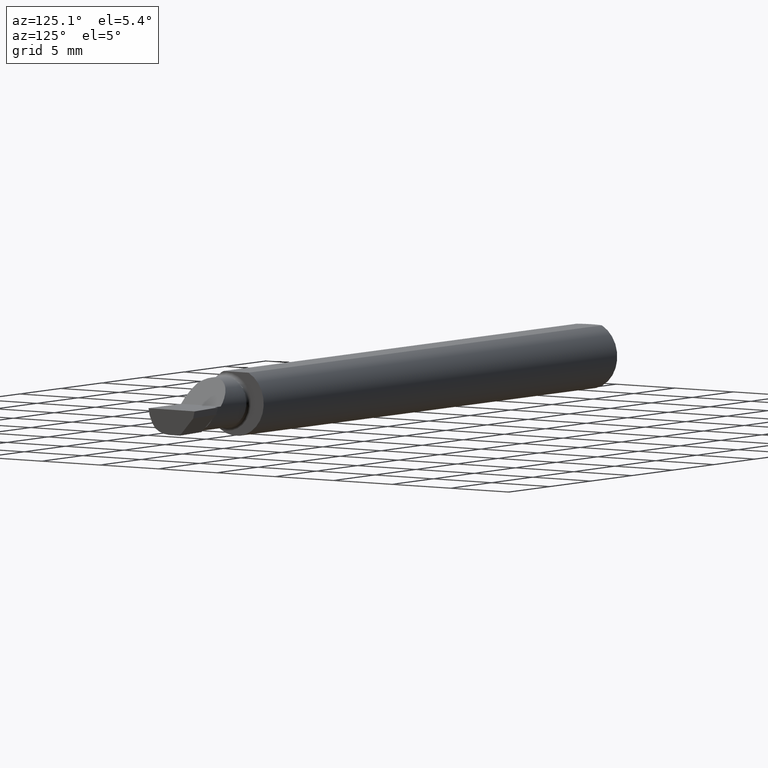
[diagram: clean part render]
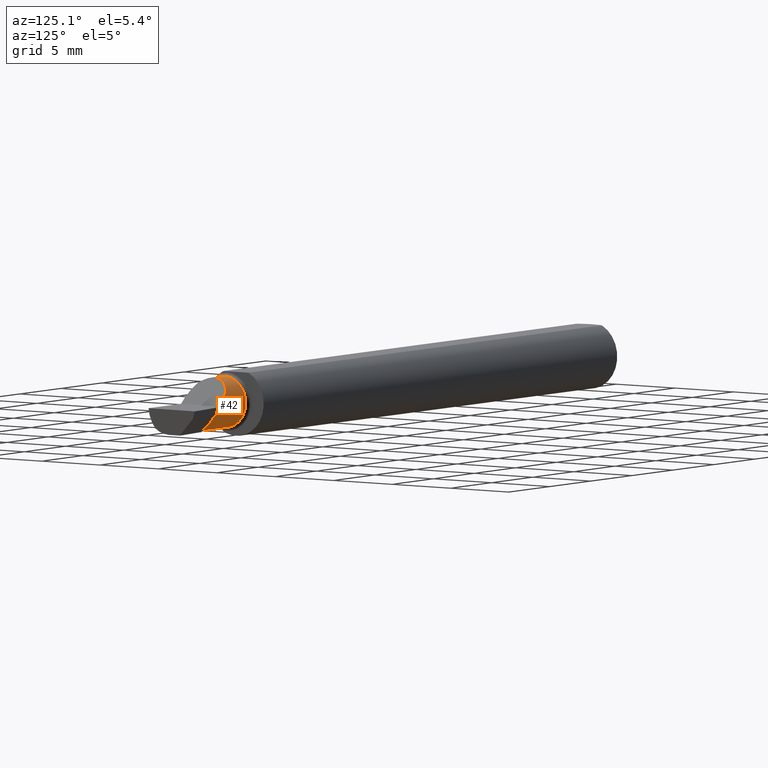
[diagram: same view with one face highlighted and labeled with its STEP entity id]
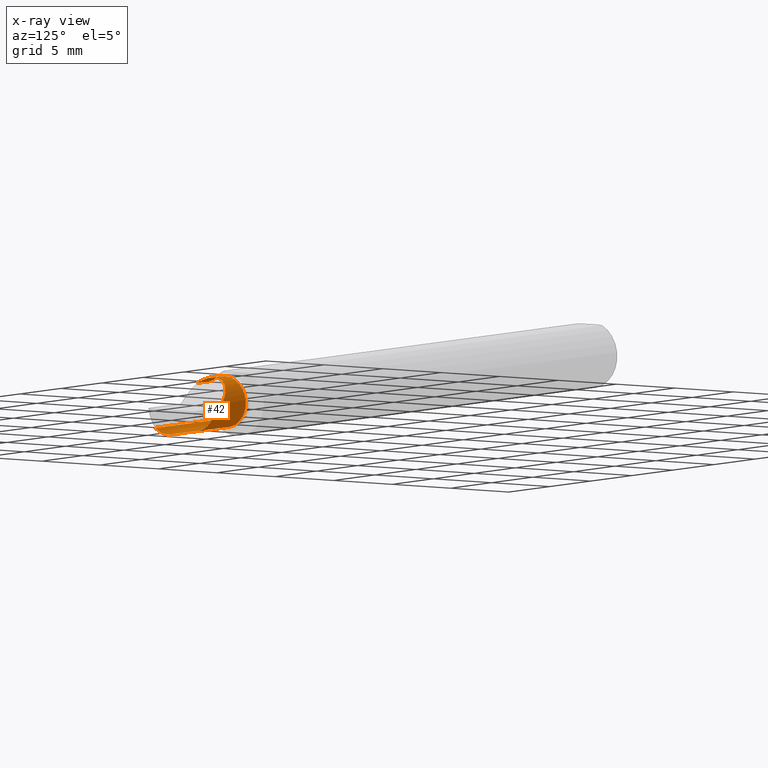
[diagram: x-ray of the same camera — body ghosted, the highlighted face saturated]
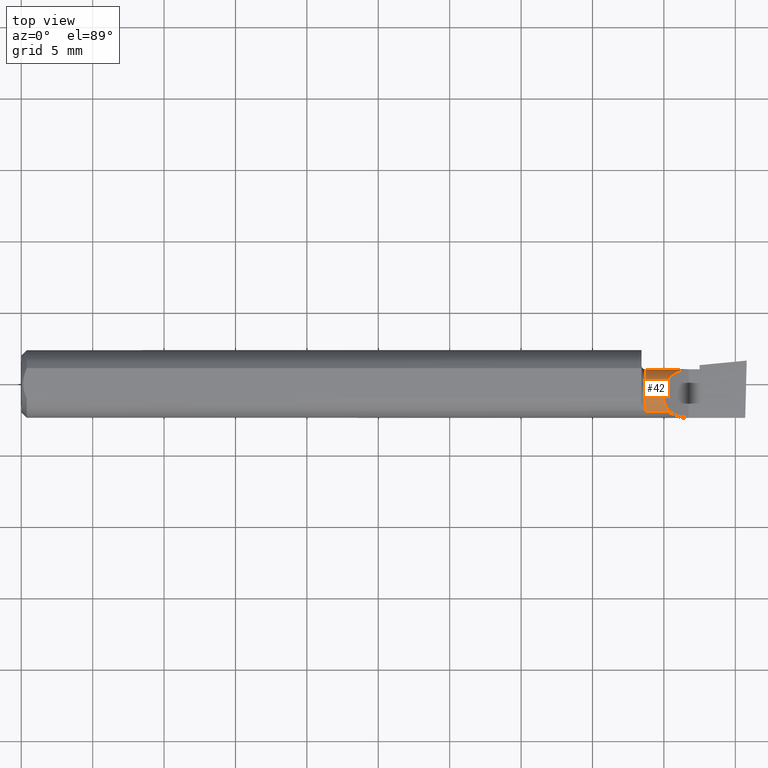
[diagram: same view with one face highlighted and labeled with its STEP entity id]
A machine part, auxiliary view. The second image highlights one B-rep face of the part: STEP entity #42.
The next image is the same camera in x-ray: the body ghosted, the highlighted face saturated — about 0% of this face is hidden behind the body in this view.
A second angle (top view) of the same face is appended — the face is thin or edge-on in the first view.
In plain terms, the highlighted cylindrical surface (edge-blend (fillet) strip) has radius 1.8034 mm, axis along (-1, -0, -0).
Its self-contained STEP definition (entity closure, byte-faithful):
#11 = LINE ( 'NONE', #409, #120 ) ;
#13 = CIRCLE ( 'NONE', #580, 0.07100000000000020184 ) ;
#29 = EDGE_CURVE ( 'NONE', #616, #217, #559, .T. ) ;
#33 = CIRCLE ( 'NONE', #394, 0.07100000000000021572 ) ;
#42 = ADVANCED_FACE ( 'NONE', ( #89 ), #623, .T. ) ;
#44 = DIRECTION ( 'NONE',  ( 4.268512490100411279E-18, -1.000000000000000000, 0.000000000000000000 ) ) ;
#46 = EDGE_CURVE ( 'NONE', #314, #616, #514, .T. ) ;
#63 = CARTESIAN_POINT ( 'NONE',  ( 1.770398118553869082, 0.04039999999999997760, 0.06960188144613024819 ) ) ;
#66 = EDGE_CURVE ( 'NONE', #520, #330, #13, .T. ) ;
#70 = VECTOR ( 'NONE', #290, 39.37007874015748143 ) ;
#75 = CARTESIAN_POINT ( 'NONE',  ( 1.989625015145392917, -0.07608366013071815592, -0.05451822320209428335 ) ) ;
#89 = FACE_OUTER_BOUND ( 'NONE', #486, .T. ) ;
#92 = CIRCLE ( 'NONE', #311, 0.07100000000000021572 ) ;
#96 =( BOUNDED_CURVE ( )  B_SPLINE_CURVE ( 3, ( #398, #214, #63, #102 ),
 .UNSPECIFIED., .F., .T. ) 
 B_SPLINE_CURVE_WITH_KNOTS ( ( 4, 4 ),
 ( 5.587886473277674071, 7.853981633974482790 ),
 .UNSPECIFIED. ) 
 CURVE ( )  GEOMETRIC_REPRESENTATION_ITEM ( )  RATIONAL_B_SPLINE_CURVE ( ( 1.000000000000000000, 0.6159343746860732605, 0.6159343746860732605, 1.000000000000000000 ) ) 
 REPRESENTATION_ITEM ( '' )  );
#102 = CARTESIAN_POINT ( 'NONE',  ( 1.840000000000000080, 0.04039999999999989433, 1.959434878635762025E-17 ) ) ;
#112 = AXIS2_PLACEMENT_3D ( 'NONE', #288, #479, #44 ) ;
#118 = CARTESIAN_POINT ( 'NONE',  ( 1.870000000000000107, -0.03060000000000022424, 0.000000000000000000 ) ) ;
#120 = VECTOR ( 'NONE', #599, 39.37007874015748143 ) ;
#123 = VERTEX_POINT ( 'NONE', #365 ) ;
#137 = EDGE_CURVE ( 'NONE', #277, #217, #524, .T. ) ;
#141 = VERTEX_POINT ( 'NONE', #155 ) ;
#155 = CARTESIAN_POINT ( 'NONE',  ( 1.785481776797905207, -0.07608366013071816980, 0.05451822320209426254 ) ) ;
#170 = CARTESIAN_POINT ( 'NONE',  ( 1.870000000000000107, -0.03060000000000022424, 0.000000000000000000 ) ) ;
#176 = CARTESIAN_POINT ( 'NONE',  ( 1.988791645263412011, -0.03060000000000022424, -0.07100000000000021572 ) ) ;
#196 = DIRECTION ( 'NONE',  ( 1.000000000000000000, 4.268512490100411279E-18, 0.000000000000000000 ) ) ;
#202 = LINE ( 'NONE', #208, #445 ) ;
#206 = AXIS2_PLACEMENT_3D ( 'NONE', #220, #354, #417 ) ;
#208 = CARTESIAN_POINT ( 'NONE',  ( 2.000000000000000000, -0.03060000000000022424, -0.07100000000000021572 ) ) ;
#214 = CARTESIAN_POINT ( 'NONE',  ( 1.740893772288689023, -0.02263899945514331880, 0.09910622771130976616 ) ) ;
#217 = VERTEX_POINT ( 'NONE', #229 ) ;
#220 = CARTESIAN_POINT ( 'NONE',  ( 1.720000000000000195, -0.03060000000000022424, 0.000000000000000000 ) ) ;
#226 = ORIENTED_EDGE ( 'NONE', *, *, #66, .F. ) ;
#229 = CARTESIAN_POINT ( 'NONE',  ( 1.720000000000000195, -0.07608366013071793388, -0.05451822320209443601 ) ) ;
#231 = EDGE_CURVE ( 'NONE', #520, #123, #33, .T. ) ;
#263 = VERTEX_POINT ( 'NONE', #369 ) ;
#273 = DIRECTION ( 'NONE',  ( -1.000000000000000000, -4.268512490100411279E-18, -0.000000000000000000 ) ) ;
#277 = VERTEX_POINT ( 'NONE', #475 ) ;
#288 = CARTESIAN_POINT ( 'NONE',  ( 0.000000000000000000, -0.03060000000000023118, 0.000000000000000000 ) ) ;
#290 = DIRECTION ( 'NONE',  ( 1.000000000000000000, 4.268512490100411279E-18, 0.000000000000000000 ) ) ;
#303 = CARTESIAN_POINT ( 'NONE',  ( 1.870000000000000107, -0.03060000000000022424, 0.000000000000000000 ) ) ;
#311 = AXIS2_PLACEMENT_3D ( 'NONE', #170, #371, #560 ) ;
#314 = VERTEX_POINT ( 'NONE', #319 ) ;
#319 = CARTESIAN_POINT ( 'NONE',  ( 1.988791645263412011, -0.03060000000000022424, -0.07100000000000021572 ) ) ;
#323 = CARTESIAN_POINT ( 'NONE',  ( 1.988641161029047311, -0.06318680184005825984, -0.06527786071030773629 ) ) ;
#330 = VERTEX_POINT ( 'NONE', #536 ) ;
#338 = CARTESIAN_POINT ( 'NONE',  ( -3.030643867965641156E-19, 0.04039999999999997066, 1.030335658007946046E-15 ) ) ;
#341 = LINE ( 'NONE', #338, #70 ) ;
#348 = EDGE_CURVE ( 'NONE', #263, #416, #341, .T. ) ;
#354 = DIRECTION ( 'NONE',  ( -1.000000000000000000, -4.268512490100411279E-18, -0.000000000000000000 ) ) ;
#363 = ORIENTED_EDGE ( 'NONE', *, *, #46, .T. ) ;
#365 = CARTESIAN_POINT ( 'NONE',  ( 1.870000000000000107, -0.03060000000000022424, -0.07100000000000021572 ) ) ;
#369 = CARTESIAN_POINT ( 'NONE',  ( 1.840000000000000080, 0.04039999999999989433, 1.959434878635762025E-17 ) ) ;
#370 = CARTESIAN_POINT ( 'NONE',  ( 1.988351831874612285, -0.04739579569646894946, -0.07100000000000021572 ) ) ;
#371 = DIRECTION ( 'NONE',  ( -1.000000000000000000, -4.268512490100411279E-18, -0.000000000000000000 ) ) ;
#374 = ORIENTED_EDGE ( 'NONE', *, *, #612, .T. ) ;
#394 = AXIS2_PLACEMENT_3D ( 'NONE', #118, #273, #419 ) ;
#398 = CARTESIAN_POINT ( 'NONE',  ( 1.785481776797905207, -0.07608366013071816980, 0.05451822320209426254 ) ) ;
#409 = CARTESIAN_POINT ( 'NONE',  ( 1.795000000000000151, -0.07608366013071815592, 0.05451822320209428335 ) ) ;
#416 = VERTEX_POINT ( 'NONE', #584 ) ;
#417 = DIRECTION ( 'NONE',  ( 0.000000000000000000, -1.000000000000000000, 0.000000000000000000 ) ) ;
#419 = DIRECTION ( 'NONE',  ( 0.000000000000000000, -1.000000000000000000, 0.000000000000000000 ) ) ;
#428 = ORIENTED_EDGE ( 'NONE', *, *, #29, .T. ) ;
#437 = DIRECTION ( 'NONE',  ( 0.000000000000000000, -1.000000000000000000, -1.776356839400250859E-15 ) ) ;
#445 = VECTOR ( 'NONE', #518, 39.37007874015748143 ) ;
#456 = ORIENTED_EDGE ( 'NONE', *, *, #137, .F. ) ;
#464 = ORIENTED_EDGE ( 'NONE', *, *, #231, .T. ) ;
#466 = ORIENTED_EDGE ( 'NONE', *, *, #494, .T. ) ;
#475 = CARTESIAN_POINT ( 'NONE',  ( 1.720000000000000195, -0.07608366013071798939, 0.05451822320209439438 ) ) ;
#479 = DIRECTION ( 'NONE',  ( -1.000000000000000000, -4.268512490100411279E-18, -0.000000000000000000 ) ) ;
#486 = EDGE_LOOP ( 'NONE', ( #598, #363, #428, #456, #466, #526, #601, #374, #226, #464 ) ) ;
#492 = CARTESIAN_POINT ( 'NONE',  ( 1.870000000000000107, 0.006287764588007909231, -0.06066541703227401605 ) ) ;
#494 = EDGE_CURVE ( 'NONE', #277, #141, #11, .T. ) ;
#499 = CARTESIAN_POINT ( 'NONE',  ( 1.989625015145392917, -0.07608366013071815592, -0.05451822320209428335 ) ) ;
#514 =( BOUNDED_CURVE ( )  B_SPLINE_CURVE ( 3, ( #176, #370, #323, #75 ),
 .UNSPECIFIED., .F., .T. ) 
 B_SPLINE_CURVE_WITH_KNOTS ( ( 4, 4 ),
 ( 6.073135862899447623, 6.768434696801358896 ),
 .UNSPECIFIED. ) 
 CURVE ( )  GEOMETRIC_REPRESENTATION_ITEM ( )  RATIONAL_B_SPLINE_CURVE ( ( 1.000000000000000000, 0.9601174178332941844, 0.9601174178332941844, 1.000000000000000000 ) ) 
 REPRESENTATION_ITEM ( '' )  );
#517 = DIRECTION ( 'NONE',  ( -1.000000000000000000, -4.268512490100411279E-18, -0.000000000000000000 ) ) ;
#518 = DIRECTION ( 'NONE',  ( -1.000000000000000000, 5.691349986800549142E-18, -0.000000000000000000 ) ) ;
#520 = VERTEX_POINT ( 'NONE', #492 ) ;
#524 = CIRCLE ( 'NONE', #206, 0.07100000000000020184 ) ;
#526 = ORIENTED_EDGE ( 'NONE', *, *, #578, .T. ) ;
#528 = CARTESIAN_POINT ( 'NONE',  ( 1.795000000000000151, -0.07608366013071815592, -0.05451822320209428335 ) ) ;
#536 = CARTESIAN_POINT ( 'NONE',  ( 1.870000000000000107, 0.03115491040209760962, -0.03503328476219291082 ) ) ;
#540 = EDGE_CURVE ( 'NONE', #314, #123, #202, .T. ) ;
#551 = VECTOR ( 'NONE', #517, 39.37007874015748143 ) ;
#559 = LINE ( 'NONE', #528, #551 ) ;
#560 = DIRECTION ( 'NONE',  ( 0.000000000000000000, -1.000000000000000000, 0.000000000000000000 ) ) ;
#578 = EDGE_CURVE ( 'NONE', #141, #263, #96, .T. ) ;
#580 = AXIS2_PLACEMENT_3D ( 'NONE', #303, #196, #437 ) ;
#584 = CARTESIAN_POINT ( 'NONE',  ( 1.870000000000000107, 0.04039999999999999841, 1.030335658007946243E-15 ) ) ;
#598 = ORIENTED_EDGE ( 'NONE', *, *, #540, .F. ) ;
#599 = DIRECTION ( 'NONE',  ( 1.000000000000000000, 4.268512490100411279E-18, 0.000000000000000000 ) ) ;
#601 = ORIENTED_EDGE ( 'NONE', *, *, #348, .T. ) ;
#612 = EDGE_CURVE ( 'NONE', #416, #330, #92, .T. ) ;
#616 = VERTEX_POINT ( 'NONE', #499 ) ;
#623 = CYLINDRICAL_SURFACE ( 'NONE', #112, 0.07100000000000021572 ) ;